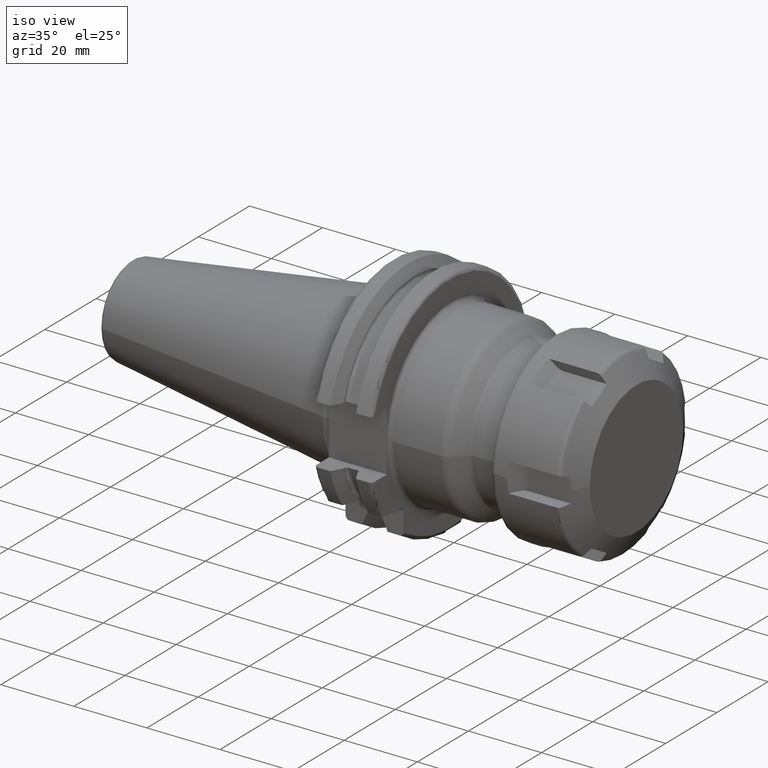
[diagram: clean part render]
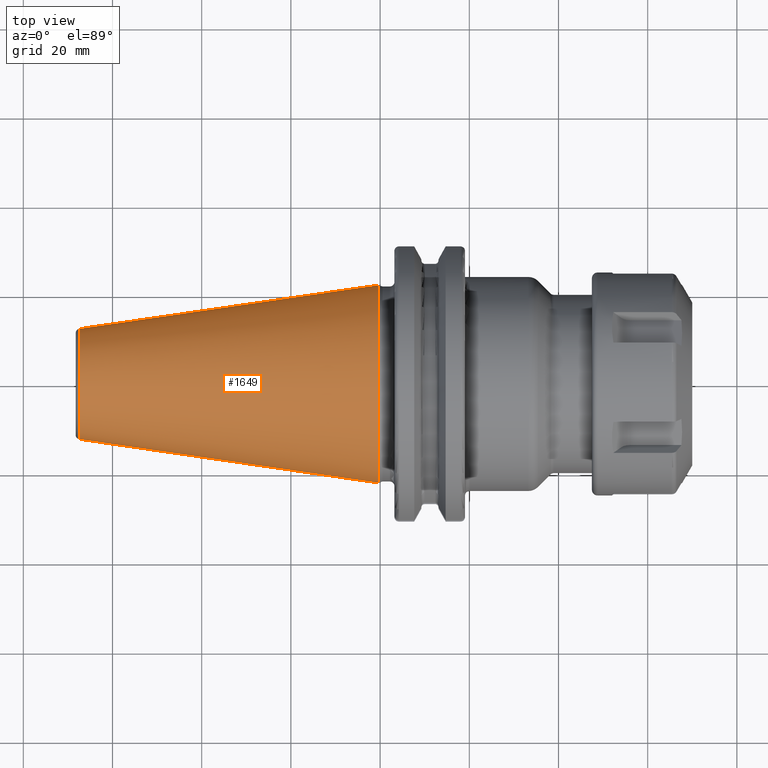
[diagram: tour spotlight — one face highlighted and labeled with its STEP entity id]
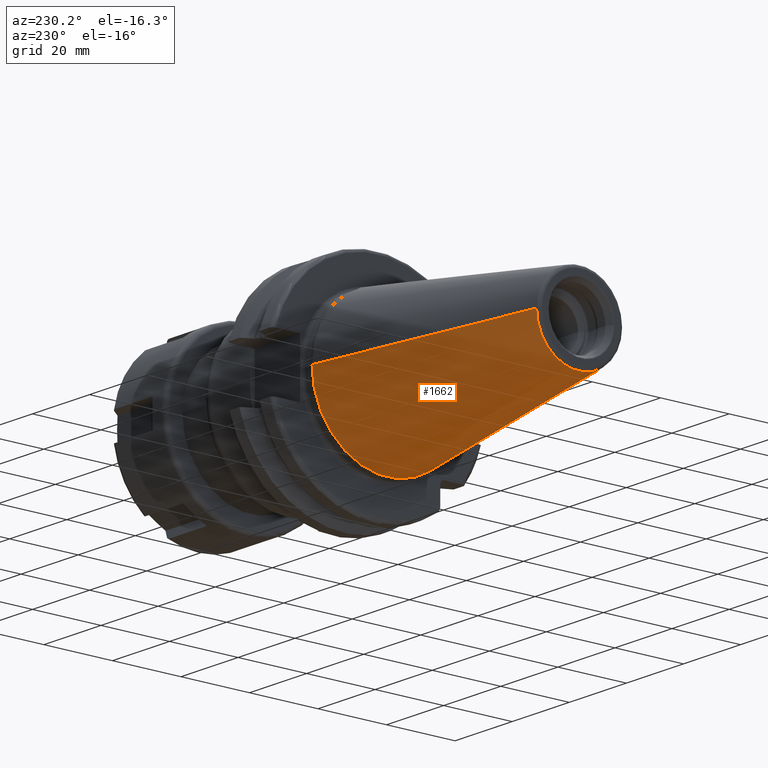
[diagram: tour spotlight — one face highlighted and labeled with its STEP entity id]
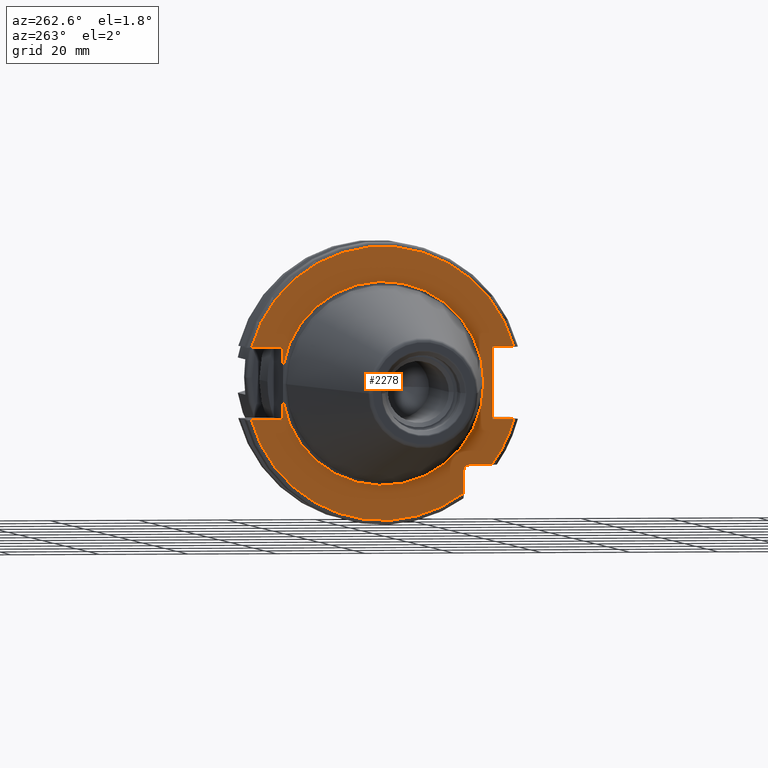
[diagram: tour spotlight — one face highlighted and labeled with its STEP entity id]
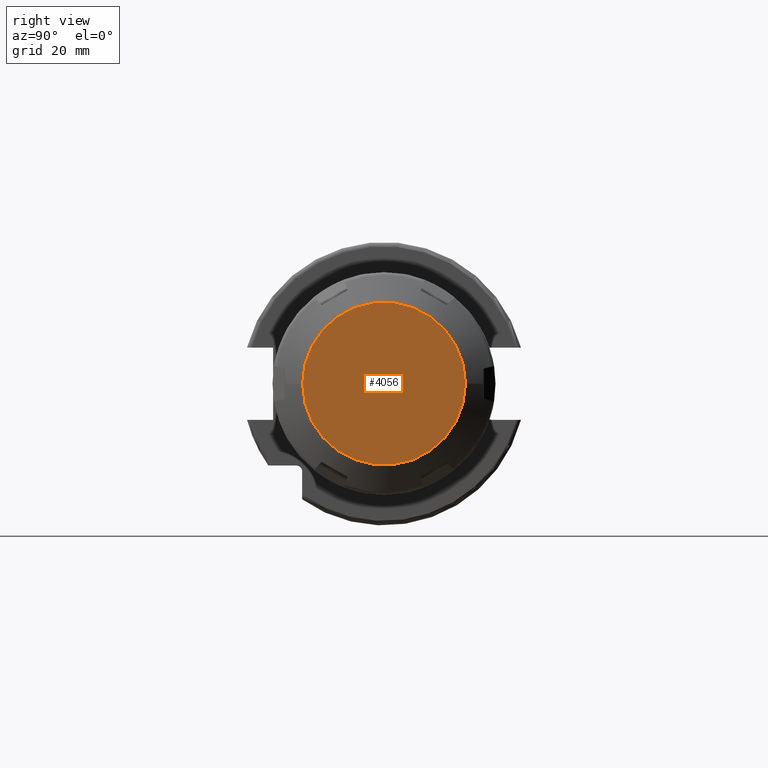
[diagram: tour spotlight — one face highlighted and labeled with its STEP entity id]
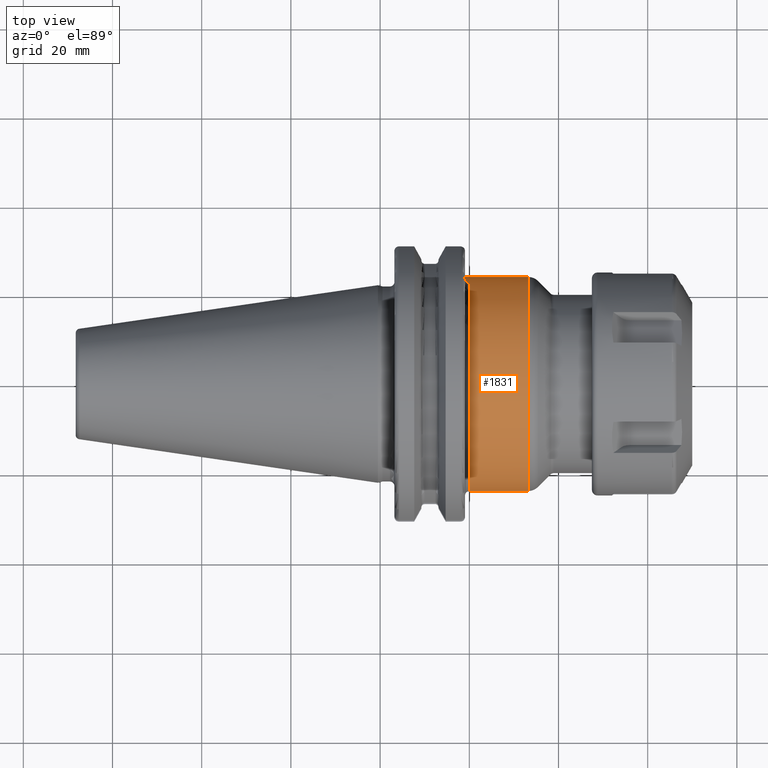
[diagram: tour spotlight — one face highlighted and labeled with its STEP entity id]
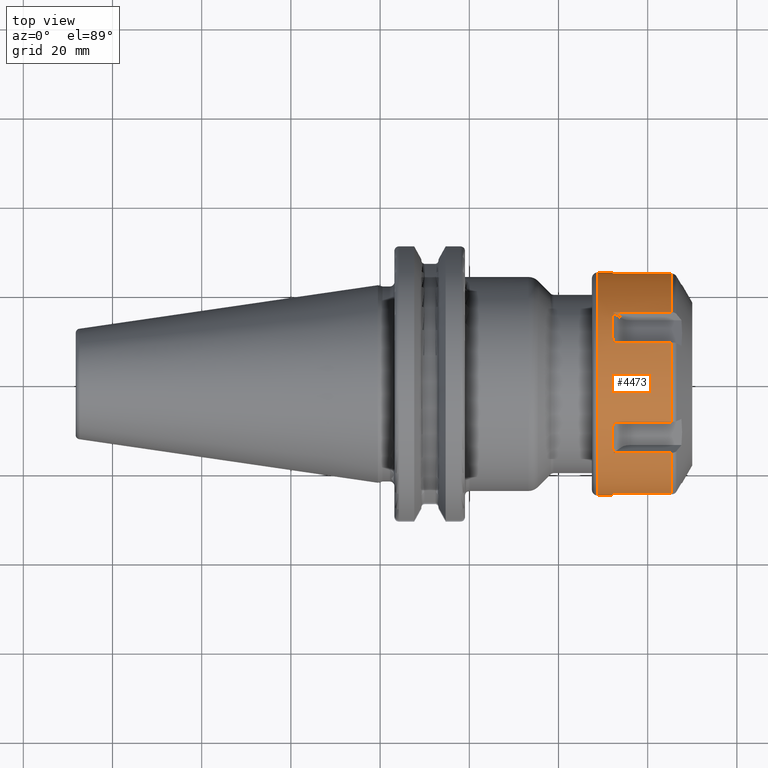
[diagram: tour spotlight — one face highlighted and labeled with its STEP entity id]
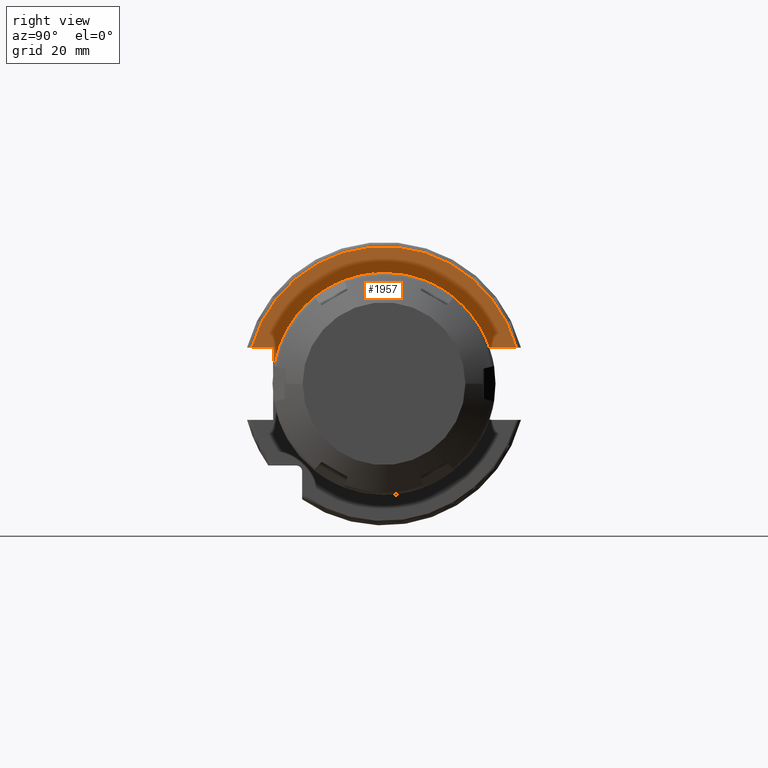
[diagram: tour spotlight — one face highlighted and labeled with its STEP entity id]
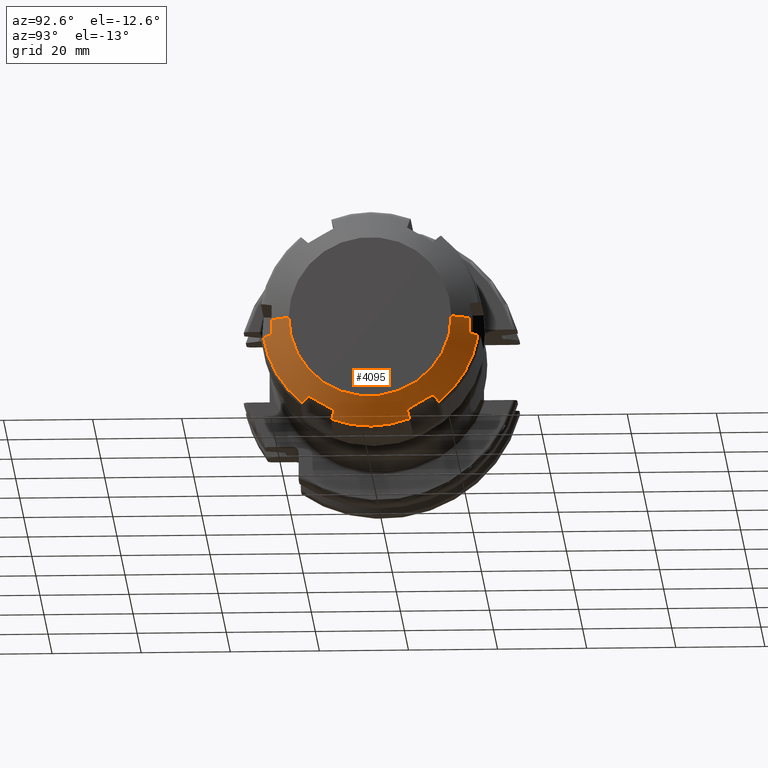
[diagram: tour spotlight — one face highlighted and labeled with its STEP entity id]
A machine part: a face-by-face anatomy tour. The part has 144 B-rep faces; the first image is the clean iso view, then the 8 largest visible faces are spotlighted one at a time (largest first), each with its STEP entity span.

Face 1 — top view, entity #1649. In plain terms, the highlighted conical surface has half-angle 8.298 deg.
Definition (entity closure, byte-faithful):
#37=CARTESIAN_POINT('',(-6.743710273571E1,0.E0,0.E0));
#38=DIRECTION('',(1.E0,0.E0,0.E0));
#39=DIRECTION('',(0.E0,1.E0,0.E0));
#40=AXIS2_PLACEMENT_3D('',#37,#38,#39);
#42=CARTESIAN_POINT('',(-4.896823332305E-1,0.E0,0.E0));
#43=DIRECTION('',(1.E0,0.E0,0.E0));
#44=DIRECTION('',(0.E0,1.E0,0.E0));
#45=AXIS2_PLACEMENT_3D('',#42,#43,#44);
#47=DIRECTION('',(-9.895312636440E-1,-1.443186691705E-1,0.E0));
#48=VECTOR('',#47,6.765568998391E1);
#49=CARTESIAN_POINT('',(-4.896823332305E-1,2.215358204157E1,0.E0));
#50=LINE('',#49,#48);
#51=DIRECTION('',(-9.895312636440E-1,1.443186691705E-1,0.E0));
#52=VECTOR('',#51,6.765568998391E1);
#53=CARTESIAN_POINT('',(-4.896823332305E-1,-2.215358204157E1,0.E0));
#54=LINE('',#53,#52);
#1311=CARTESIAN_POINT('',(-6.743710273571E1,1.238960290128E1,0.E0));
#1313=VERTEX_POINT('',#1311);
#1315=CARTESIAN_POINT('',(-6.743710273571E1,-1.238960290128E1,0.E0));
#1317=VERTEX_POINT('',#1315);
#1379=CARTESIAN_POINT('',(-4.896823332305E-1,2.215358204157E1,0.E0));
#1380=VERTEX_POINT('',#1379);
#1381=CARTESIAN_POINT('',(-4.896823332305E-1,-2.215358204157E1,0.E0));
#1382=VERTEX_POINT('',#1381);
#1635=CARTESIAN_POINT('',(-3.396339253447E1,0.E0,0.E0));
#1636=DIRECTION('',(1.E0,0.E0,0.E0));
#1637=DIRECTION('',(0.E0,-1.E0,0.E0));
#1638=AXIS2_PLACEMENT_3D('',#1635,#1636,#1637);
#1639=CONICAL_SURFACE('',#1638,1.727159247143E1,8.297826828206E0);
#1641=ORIENTED_EDGE('',*,*,#1640,.F.);
#1643=ORIENTED_EDGE('',*,*,#1642,.T.);
#1645=ORIENTED_EDGE('',*,*,#1644,.T.);
#1646=ORIENTED_EDGE('',*,*,#1628,.F.);
#1647=EDGE_LOOP('',(#1641,#1643,#1645,#1646));
#1648=FACE_OUTER_BOUND('',#1647,.F.);
#1649=ADVANCED_FACE('',(#1648),#1639,.T.);
#41=CIRCLE('',#40,1.238960290128E1);
#46=CIRCLE('',#45,2.215358204157E1);
#1628=EDGE_CURVE('',#1313,#1317,#41,.T.);
#1640=EDGE_CURVE('',#1380,#1313,#50,.T.);
#1642=EDGE_CURVE('',#1380,#1382,#46,.T.);
#1644=EDGE_CURVE('',#1382,#1317,#54,.T.);

Face 2 — auxiliary view, entity #1662. In plain terms, the highlighted conical surface has half-angle 8.298 deg.
Definition (entity closure, byte-faithful):
#32=CARTESIAN_POINT('',(-6.743710273571E1,0.E0,0.E0));
#33=DIRECTION('',(-1.E0,0.E0,0.E0));
#34=DIRECTION('',(0.E0,1.E0,0.E0));
#35=AXIS2_PLACEMENT_3D('',#32,#33,#34);
#47=DIRECTION('',(-9.895312636440E-1,-1.443186691705E-1,0.E0));
#48=VECTOR('',#47,6.765568998391E1);
#49=CARTESIAN_POINT('',(-4.896823332305E-1,2.215358204157E1,0.E0));
#50=LINE('',#49,#48);
#51=DIRECTION('',(-9.895312636440E-1,1.443186691705E-1,0.E0));
#52=VECTOR('',#51,6.765568998391E1);
#53=CARTESIAN_POINT('',(-4.896823332305E-1,-2.215358204157E1,0.E0));
#54=LINE('',#53,#52);
#55=CARTESIAN_POINT('',(-4.896823332305E-1,0.E0,0.E0));
#56=DIRECTION('',(-1.E0,0.E0,0.E0));
#57=DIRECTION('',(0.E0,1.E0,0.E0));
#58=AXIS2_PLACEMENT_3D('',#55,#56,#57);
#1311=CARTESIAN_POINT('',(-6.743710273571E1,1.238960290128E1,0.E0));
#1313=VERTEX_POINT('',#1311);
#1315=CARTESIAN_POINT('',(-6.743710273571E1,-1.238960290128E1,0.E0));
#1317=VERTEX_POINT('',#1315);
#1379=CARTESIAN_POINT('',(-4.896823332305E-1,2.215358204157E1,0.E0));
#1380=VERTEX_POINT('',#1379);
#1381=CARTESIAN_POINT('',(-4.896823332305E-1,-2.215358204157E1,0.E0));
#1382=VERTEX_POINT('',#1381);
#1650=CARTESIAN_POINT('',(-3.396339253447E1,0.E0,0.E0));
#1651=DIRECTION('',(1.E0,0.E0,0.E0));
#1652=DIRECTION('',(0.E0,-1.E0,0.E0));
#1653=AXIS2_PLACEMENT_3D('',#1650,#1651,#1652);
#1654=CONICAL_SURFACE('',#1653,1.727159247143E1,8.297826828206E0);
#1655=ORIENTED_EDGE('',*,*,#1640,.T.);
#1656=ORIENTED_EDGE('',*,*,#1617,.T.);
#1657=ORIENTED_EDGE('',*,*,#1644,.F.);
#1659=ORIENTED_EDGE('',*,*,#1658,.F.);
#1660=EDGE_LOOP('',(#1655,#1656,#1657,#1659));
#1661=FACE_OUTER_BOUND('',#1660,.F.);
#1662=ADVANCED_FACE('',(#1661),#1654,.T.);
#36=CIRCLE('',#35,1.238960290128E1);
#59=CIRCLE('',#58,2.215358204157E1);
#1617=EDGE_CURVE('',#1313,#1317,#36,.T.);
#1640=EDGE_CURVE('',#1380,#1313,#50,.T.);
#1644=EDGE_CURVE('',#1382,#1317,#54,.T.);
#1658=EDGE_CURVE('',#1380,#1382,#59,.T.);

Face 3 — auxiliary view, entity #2278. In plain terms, the highlighted planar face has unit normal (1, 0, 0).
Definition (entity closure, byte-faithful):
#117=CARTESIAN_POINT('',(3.2E0,0.E0,0.E0));
#118=DIRECTION('',(-1.E0,0.E0,0.E0));
#119=DIRECTION('',(0.E0,9.857923497268E-1,-1.679685780739E-1));
#120=AXIS2_PLACEMENT_3D('',#117,#118,#119);
#511=DIRECTION('',(0.E0,-1.E0,0.E0));
#512=VECTOR('',#511,4.990259339464E0);
#513=CARTESIAN_POINT('',(3.2E0,-1.97E1,-1.835E1));
#514=LINE('',#513,#512);
#515=DIRECTION('',(0.E0,0.E0,1.E0));
#516=VECTOR('',#515,4.990259339464E0);
#517=CARTESIAN_POINT('',(3.2E0,-1.835E1,-2.469025933946E1));
#518=LINE('',#517,#516);
#519=CARTESIAN_POINT('',(3.2E0,0.E0,0.E0));
#520=DIRECTION('',(-1.E0,0.E0,0.E0));
#521=DIRECTION('',(0.E0,9.647119303464E-1,-2.633075985372E-1));
#522=AXIS2_PLACEMENT_3D('',#519,#520,#521);
#524=DIRECTION('',(0.E0,-1.E0,0.E0));
#525=VECTOR('',#524,7.126950757280E0);
#526=CARTESIAN_POINT('',(3.2E0,2.967695075728E1,-8.1E0));
#527=LINE('',#526,#525);
#528=DIRECTION('',(0.E0,0.E0,-1.E0));
#529=VECTOR('',#528,4.257718776560E0);
#530=CARTESIAN_POINT('',(3.2E0,2.255E1,-3.842281223440E0));
#531=LINE('',#530,#529);
#532=DIRECTION('',(0.E0,0.E0,-1.E0));
#533=VECTOR('',#532,4.257718776560E0);
#534=CARTESIAN_POINT('',(3.2E0,2.255E1,8.1E0));
#535=LINE('',#534,#533);
#536=DIRECTION('',(0.E0,-1.E0,0.E0));
#537=VECTOR('',#536,7.126950757280E0);
#538=CARTESIAN_POINT('',(3.2E0,2.967695075728E1,8.1E0));
#539=LINE('',#538,#537);
#540=CARTESIAN_POINT('',(3.2E0,0.E0,0.E0));
#541=DIRECTION('',(1.E0,0.E0,0.E0));
#542=DIRECTION('',(0.E0,9.647119303464E-1,2.633075985372E-1));
#543=AXIS2_PLACEMENT_3D('',#540,#541,#542);
#545=DIRECTION('',(0.E0,1.E0,0.E0));
#546=VECTOR('',#545,4.826950757280E0);
#547=CARTESIAN_POINT('',(3.2E0,-2.967695075728E1,8.1E0));
#548=LINE('',#547,#546);
#549=DIRECTION('',(0.E0,0.E0,1.E0));
#550=VECTOR('',#549,1.62E1);
#551=CARTESIAN_POINT('',(3.2E0,-2.485E1,-8.1E0));
#552=LINE('',#551,#550);
#553=DIRECTION('',(0.E0,1.E0,0.E0));
#554=VECTOR('',#553,4.826950757280E0);
#555=CARTESIAN_POINT('',(3.2E0,-2.967695075728E1,-8.1E0));
#556=LINE('',#555,#554);
#557=CARTESIAN_POINT('',(3.2E0,0.E0,0.E0));
#558=DIRECTION('',(-1.E0,0.E0,0.E0));
#559=DIRECTION('',(0.E0,-8.026089992512E-1,-5.965054855750E-1));
#560=AXIS2_PLACEMENT_3D('',#557,#558,#559);
#571=CARTESIAN_POINT('',(3.2E0,-1.97E1,-1.97E1));
#572=DIRECTION('',(1.E0,0.E0,0.E0));
#573=DIRECTION('',(0.E0,1.E0,0.E0));
#574=AXIS2_PLACEMENT_3D('',#571,#572,#573);
#961=CARTESIAN_POINT('',(3.2E0,0.E0,0.E0));
#962=DIRECTION('',(1.E0,0.E0,0.E0));
#963=DIRECTION('',(0.E0,9.857923497268E-1,1.679685780739E-1));
#964=AXIS2_PLACEMENT_3D('',#961,#962,#963);
#1323=CARTESIAN_POINT('',(3.2E0,-2.2875E1,0.E0));
#1325=VERTEX_POINT('',#1323);
#1465=CARTESIAN_POINT('',(3.2E0,2.967695075728E1,8.1E0));
#1466=CARTESIAN_POINT('',(3.2E0,2.255E1,8.1E0));
#1467=VERTEX_POINT('',#1465);
#1468=VERTEX_POINT('',#1466);
#1469=CARTESIAN_POINT('',(3.2E0,2.255E1,3.842281223440E0));
#1470=VERTEX_POINT('',#1469);
#1471=CARTESIAN_POINT('',(3.2E0,2.255E1,-3.842281223440E0));
#1472=CARTESIAN_POINT('',(3.2E0,2.255E1,-8.1E0));
#1473=VERTEX_POINT('',#1471);
#1474=VERTEX_POINT('',#1472);
#1475=CARTESIAN_POINT('',(3.2E0,2.967695075728E1,-8.1E0));
#1476=VERTEX_POINT('',#1475);
#1477=CARTESIAN_POINT('',(3.2E0,-2.967695075728E1,-8.1E0));
#1478=CARTESIAN_POINT('',(3.2E0,-2.485E1,-8.1E0));
#1479=VERTEX_POINT('',#1477);
#1480=VERTEX_POINT('',#1478);
#1481=CARTESIAN_POINT('',(3.2E0,-2.485E1,8.1E0));
#1482=VERTEX_POINT('',#1481);
#1483=CARTESIAN_POINT('',(3.2E0,-2.967695075728E1,8.1E0));
#1484=VERTEX_POINT('',#1483);
#1510=CARTESIAN_POINT('',(3.2E0,-1.835E1,-2.469025933946E1));
#1511=VERTEX_POINT('',#1510);
#1518=CARTESIAN_POINT('',(3.2E0,-1.97E1,-1.835E1));
#1519=CARTESIAN_POINT('',(3.2E0,-2.469025933946E1,-1.835E1));
#1520=VERTEX_POINT('',#1518);
#1521=VERTEX_POINT('',#1519);
#1522=CARTESIAN_POINT('',(3.2E0,-1.835E1,-1.97E1));
#1523=VERTEX_POINT('',#1522);
#2249=CARTESIAN_POINT('',(3.2E0,0.E0,0.E0));
#2250=DIRECTION('',(1.E0,0.E0,0.E0));
#2251=DIRECTION('',(0.E0,-1.E0,0.E0));
#2252=AXIS2_PLACEMENT_3D('',#2249,#2250,#2251);
#2253=PLANE('',#2252);
#2255=ORIENTED_EDGE('',*,*,#2254,.F.);
#2257=ORIENTED_EDGE('',*,*,#2256,.F.);
#2259=ORIENTED_EDGE('',*,*,#2258,.F.);
#2261=ORIENTED_EDGE('',*,*,#2260,.F.);
#2262=ORIENTED_EDGE('',*,*,#1889,.T.);
#2263=ORIENTED_EDGE('',*,*,#1750,.F.);
#2264=ORIENTED_EDGE('',*,*,#1731,.T.);
#2266=ORIENTED_EDGE('',*,*,#2265,.F.);
#2267=ORIENTED_EDGE('',*,*,#1745,.F.);
#2268=ORIENTED_EDGE('',*,*,#1808,.F.);
#2270=ORIENTED_EDGE('',*,*,#2269,.T.);
#2271=ORIENTED_EDGE('',*,*,#2228,.T.);
#2272=ORIENTED_EDGE('',*,*,#1984,.F.);
#2273=ORIENTED_EDGE('',*,*,#2004,.F.);
#2275=ORIENTED_EDGE('',*,*,#2274,.F.);
#2276=EDGE_LOOP('',(#2255,#2257,#2259,#2261,#2262,#2263,#2264,#2266,#2267,#2268,
#2270,#2271,#2272,#2273,#2275));
#2277=FACE_OUTER_BOUND('',#2276,.F.);
#2278=ADVANCED_FACE('',(#2277),#2253,.F.);
#121=CIRCLE('',#120,2.2875E1);
#523=CIRCLE('',#522,3.07625E1);
#544=CIRCLE('',#543,3.07625E1);
#561=CIRCLE('',#560,3.07625E1);
#575=CIRCLE('',#574,1.35E0);
#965=CIRCLE('',#964,2.2875E1);
#1731=EDGE_CURVE('',#1473,#1325,#121,.T.);
#1745=EDGE_CURVE('',#1468,#1470,#535,.T.);
#1750=EDGE_CURVE('',#1473,#1474,#531,.T.);
#1808=EDGE_CURVE('',#1467,#1468,#539,.T.);
#1889=EDGE_CURVE('',#1476,#1474,#527,.T.);
#1984=EDGE_CURVE('',#1480,#1482,#552,.T.);
#2004=EDGE_CURVE('',#1479,#1480,#556,.T.);
#2228=EDGE_CURVE('',#1484,#1482,#548,.T.);
#2254=EDGE_CURVE('',#1520,#1521,#514,.T.);
#2256=EDGE_CURVE('',#1523,#1520,#575,.T.);
#2258=EDGE_CURVE('',#1511,#1523,#518,.T.);
#2260=EDGE_CURVE('',#1476,#1511,#523,.T.);
#2265=EDGE_CURVE('',#1470,#1325,#965,.T.);
#2269=EDGE_CURVE('',#1467,#1484,#544,.T.);
#2274=EDGE_CURVE('',#1521,#1479,#561,.T.);

Face 4 — right view, entity #4056. In plain terms, the highlighted planar face has unit normal (1, 0, 0).
Definition (entity closure, byte-faithful):
#3306=CARTESIAN_POINT('',(2.25E1,0.E0,0.E0));
#3307=DIRECTION('',(-1.E0,0.E0,0.E0));
#3308=DIRECTION('',(0.E0,1.E0,0.E0));
#3309=AXIS2_PLACEMENT_3D('',#3306,#3307,#3308);
#3674=CARTESIAN_POINT('',(2.25E1,0.E0,0.E0));
#3675=DIRECTION('',(1.E0,0.E0,0.E0));
#3676=DIRECTION('',(0.E0,1.E0,0.E0));
#3677=AXIS2_PLACEMENT_3D('',#3674,#3675,#3676);
#3937=CARTESIAN_POINT('',(2.25E1,1.825E1,0.E0));
#3938=CARTESIAN_POINT('',(2.25E1,-1.825E1,0.E0));
#3939=VERTEX_POINT('',#3937);
#3940=VERTEX_POINT('',#3938);
#4045=CARTESIAN_POINT('',(2.25E1,0.E0,0.E0));
#4046=DIRECTION('',(1.E0,0.E0,0.E0));
#4047=DIRECTION('',(0.E0,-1.E0,0.E0));
#4048=AXIS2_PLACEMENT_3D('',#4045,#4046,#4047);
#4049=PLANE('',#4048);
#4051=ORIENTED_EDGE('',*,*,#4050,.T.);
#4053=ORIENTED_EDGE('',*,*,#4052,.F.);
#4054=EDGE_LOOP('',(#4051,#4053));
#4055=FACE_OUTER_BOUND('',#4054,.F.);
#4056=ADVANCED_FACE('',(#4055),#4049,.T.);
#3310=CIRCLE('',#3309,1.825E1);
#3678=CIRCLE('',#3677,1.825E1);
#4050=EDGE_CURVE('',#3939,#3940,#3310,.T.);
#4052=EDGE_CURVE('',#3939,#3940,#3678,.T.);

Face 5 — top view, entity #1831. In plain terms, the highlighted cylindrical surface (partial cylindrical patch) has radius 24 mm, axis along (1, 0, 0).
Definition (entity closure, byte-faithful):
#135=CARTESIAN_POINT('',(1.905E1,0.E0,0.E0));
#136=DIRECTION('',(1.E0,0.E0,0.E0));
#137=DIRECTION('',(0.E0,1.E0,0.E0));
#138=AXIS2_PLACEMENT_3D('',#135,#136,#137);
#144=CARTESIAN_POINT('',(3.325735931288E1,0.E0,0.E0));
#145=DIRECTION('',(-1.E0,0.E0,0.E0));
#146=DIRECTION('',(0.E0,-1.E0,0.E0));
#147=AXIS2_PLACEMENT_3D('',#144,#145,#146);
#149=CARTESIAN_POINT('',(2.005E1,0.E0,0.E0));
#150=DIRECTION('',(1.E0,0.E0,0.E0));
#151=DIRECTION('',(0.E0,9.413255281782E-1,3.375E-1));
#152=AXIS2_PLACEMENT_3D('',#149,#150,#151);
#154=DIRECTION('',(-1.E0,0.E0,0.E0));
#155=VECTOR('',#154,1.E0);
#156=CARTESIAN_POINT('',(2.005E1,2.259181267628E1,8.1E0));
#157=LINE('',#156,#155);
#173=DIRECTION('',(-1.E0,0.E0,3.168897589390E-13));
#174=VECTOR('',#173,1.420735931288E1);
#175=CARTESIAN_POINT('',(3.325735931288E1,2.4E1,-4.500207232940E-12));
#176=LINE('',#175,#174);
#186=DIRECTION('',(-9.999999999095E-1,1.494816000092E-10,-1.345693270884E-5));
#187=VECTOR('',#186,1.320735931408E1);
#188=CARTESIAN_POINT('',(3.325735931288E1,-2.4E1,4.499440850481E-12));
#189=LINE('',#188,#187);
#1528=CARTESIAN_POINT('',(2.005E1,-2.4E1,0.E0));
#1530=VERTEX_POINT('',#1528);
#1536=CARTESIAN_POINT('',(2.005E1,2.259181267628E1,8.1E0));
#1537=VERTEX_POINT('',#1536);
#1538=CARTESIAN_POINT('',(3.325735931288E1,2.4E1,0.E0));
#1539=CARTESIAN_POINT('',(3.325735931288E1,-2.4E1,0.E0));
#1540=VERTEX_POINT('',#1538);
#1541=VERTEX_POINT('',#1539);
#1559=CARTESIAN_POINT('',(1.905E1,2.259181267628E1,8.1E0));
#1560=VERTEX_POINT('',#1559);
#1563=CARTESIAN_POINT('',(1.905E1,2.4E1,0.E0));
#1564=VERTEX_POINT('',#1563);
#1814=CARTESIAN_POINT('',(1.71525E1,0.E0,0.E0));
#1815=DIRECTION('',(1.E0,0.E0,0.E0));
#1816=DIRECTION('',(0.E0,-1.E0,0.E0));
#1817=AXIS2_PLACEMENT_3D('',#1814,#1815,#1816);
#1818=CYLINDRICAL_SURFACE('',#1817,2.4E1);
#1820=ORIENTED_EDGE('',*,*,#1819,.F.);
#1822=ORIENTED_EDGE('',*,*,#1821,.T.);
#1824=ORIENTED_EDGE('',*,*,#1823,.F.);
#1825=ORIENTED_EDGE('',*,*,#1780,.T.);
#1826=ORIENTED_EDGE('',*,*,#1769,.F.);
#1828=ORIENTED_EDGE('',*,*,#1827,.F.);
#1829=EDGE_LOOP('',(#1820,#1822,#1824,#1825,#1826,#1828));
#1830=FACE_OUTER_BOUND('',#1829,.F.);
#1831=ADVANCED_FACE('',(#1830),#1818,.T.);
#139=CIRCLE('',#138,2.4E1);
#148=CIRCLE('',#147,2.4E1);
#153=CIRCLE('',#152,2.4E1);
#1769=EDGE_CURVE('',#1564,#1560,#139,.T.);
#1780=EDGE_CURVE('',#1537,#1560,#157,.T.);
#1819=EDGE_CURVE('',#1541,#1540,#148,.T.);
#1821=EDGE_CURVE('',#1541,#1530,#189,.T.);
#1823=EDGE_CURVE('',#1537,#1530,#153,.T.);
#1827=EDGE_CURVE('',#1540,#1564,#176,.T.);

Face 6 — top view, entity #4473. In plain terms, the highlighted cylindrical surface (partial cylindrical patch) has radius 25 mm, axis along (1, 0, 0).
Definition (entity closure, byte-faithful):
#3386=DIRECTION('',(-9.999994740307E-1,1.025640486187E-3,1.577133168835E-12));
#3387=VECTOR('',#3386,3.250001709401E0);
#3388=CARTESIAN_POINT('',(4.5E0,2.499666666667E1,1.417951640115E-14));
#3389=LINE('',#3388,#3387);
#3395=DIRECTION('',(-9.999994740307E-1,-1.025640486184E-3,-1.578379367537E-12));
#3396=VECTOR('',#3395,3.250001709401E0);
#3397=CARTESIAN_POINT('',(4.5E0,-2.499666666667E1,-1.240051271650E-14));
#3398=LINE('',#3397,#3396);
#3441=CARTESIAN_POINT('',(1.788119784648E1,1.577876823125E1,1.939150517893E1));
#3461=CARTESIAN_POINT('',(1.788119784648E1,2.468292021820E1,3.969061539222E0));
#3463=CARTESIAN_POINT('',(1.788119784648E1,-8.904151986948E0,2.336056671815E1));
#3483=CARTESIAN_POINT('',(1.788119784648E1,8.904151986948E0,2.336056671815E1));
#3485=CARTESIAN_POINT('',(1.788119784648E1,-2.468292021820E1,3.969061539222E0));
#3505=CARTESIAN_POINT('',(1.788119784648E1,-1.577876823125E1,1.939150517893E1));
#3715=DIRECTION('',(1.E0,0.E0,0.E0));
#3716=VECTOR('',#3715,1.307411806468E1);
#3717=CARTESIAN_POINT('',(4.807079781803E0,-2.468292021820E1,3.969061539222E0));
#3718=LINE('',#3717,#3716);
#3719=CARTESIAN_POINT('',(4.807079781803E0,-2.468292021820E1,3.969061539222E0));
#3720=CARTESIAN_POINT('',(4.729701493378E0,-2.476029850662E1,3.487859093522E0));
#3721=CARTESIAN_POINT('',(4.609219197891E0,-2.488166969100E1,2.550817383639E0));
#3722=CARTESIAN_POINT('',(4.504536623461E0,-2.498235226543E1,1.228026509027E0));
#3723=CARTESIAN_POINT('',(4.5E0,-2.499666666667E1,4.003888699202E-1));
#3724=CARTESIAN_POINT('',(4.5E0,-2.499666666667E1,-1.240051271650E-14));
#3726=CARTESIAN_POINT('',(1.25E0,0.E0,0.E0));
#3727=DIRECTION('',(-1.E0,0.E0,0.E0));
#3728=DIRECTION('',(0.E0,-1.E0,0.E0));
#3729=AXIS2_PLACEMENT_3D('',#3726,#3727,#3728);
#3731=CARTESIAN_POINT('',(4.5E0,2.499666666667E1,1.417951640115E-14));
#3732=CARTESIAN_POINT('',(4.5E0,2.499666666667E1,1.451714455632E-1));
#3733=CARTESIAN_POINT('',(4.487872521708E0,2.499903346707E1,4.463428212677E-1));
#3734=CARTESIAN_POINT('',(4.506996588005E0,2.498383245127E1,9.338081408940E-1));
#3735=CARTESIAN_POINT('',(4.530046438305E0,2.495973141581E1,1.454059244478E0));
#3736=CARTESIAN_POINT('',(4.569007848129E0,2.492105169613E1,2.013026454191E0));
#3737=CARTESIAN_POINT('',(4.624405857984E0,2.486557811087E1,2.614252934544E0));
#3738=CARTESIAN_POINT('',(4.700654693787E0,2.478934988654E1,3.262138709532E0));
#3739=CARTESIAN_POINT('',(4.768334245703E0,2.472166575430E1,3.728109624791E0));
#3740=CARTESIAN_POINT('',(4.807079781803E0,2.468292021820E1,3.969061539222E0));
#3742=DIRECTION('',(1.E0,0.E0,0.E0));
#3743=VECTOR('',#3742,1.307411806468E1);
#3744=CARTESIAN_POINT('',(4.807079781803E0,2.468292021820E1,3.969061539222E0));
#3745=LINE('',#3744,#3743);
#3746=CARTESIAN_POINT('',(1.788119784648E1,0.E0,0.E0));
#3747=DIRECTION('',(-1.E0,0.E0,0.E0));
#3748=DIRECTION('',(0.E0,6.311507292499E-1,7.756602071573E-1));
#3749=AXIS2_PLACEMENT_3D('',#3746,#3747,#3748);
#3751=DIRECTION('',(1.E0,0.E0,0.E0));
#3752=VECTOR('',#3751,1.307411806468E1);
#3753=CARTESIAN_POINT('',(4.807079781803E0,1.577876823125E1,1.939150517893E1));
#3754=LINE('',#3753,#3752);
#3755=CARTESIAN_POINT('',(4.807079781803E0,1.577876823125E1,1.939150517893E1));
#3756=CARTESIAN_POINT('',(4.381591242552E0,1.369997375277E1,2.108300957602E1));
#3757=CARTESIAN_POINT('',(4.381591242552E0,1.140843500467E1,2.240603008909E1));
#3758=CARTESIAN_POINT('',(4.807079781803E0,8.904151986948E0,2.336056671815E1));
#3760=DIRECTION('',(1.E0,0.E0,0.E0));
#3761=VECTOR('',#3760,1.307411806468E1);
#3762=CARTESIAN_POINT('',(4.807079781803E0,8.904151986948E0,2.336056671815E1));
#3763=LINE('',#3762,#3761);
#3764=CARTESIAN_POINT('',(1.788119784648E1,0.E0,0.E0));
#3765=DIRECTION('',(-1.E0,0.E0,0.E0));
#3766=DIRECTION('',(0.E0,-3.561660794779E-1,9.344226687262E-1));
#3767=AXIS2_PLACEMENT_3D('',#3764,#3765,#3766);
#3769=DIRECTION('',(1.E0,0.E0,0.E0));
#3770=VECTOR('',#3769,1.307411806468E1);
#3771=CARTESIAN_POINT('',(4.807079781803E0,-8.904151986948E0,2.336056671815E1));
#3772=LINE('',#3771,#3770);
#3773=CARTESIAN_POINT('',(4.807079781803E0,-8.904151986948E0,2.336056671815E1));
#3774=CARTESIAN_POINT('',(4.381591242552E0,-1.140843500467E1,2.240603008909E1));
#3775=CARTESIAN_POINT('',(4.381591242552E0,-1.369997375277E1,2.108300957602E1));
#3776=CARTESIAN_POINT('',(4.807079781803E0,-1.577876823125E1,1.939150517893E1));
#3778=DIRECTION('',(1.E0,0.E0,0.E0));
#3779=VECTOR('',#3778,1.307411806468E1);
#3780=CARTESIAN_POINT('',(4.807079781803E0,-1.577876823125E1,1.939150517893E1));
#3781=LINE('',#3780,#3779);
#3782=CARTESIAN_POINT('',(1.788119784648E1,0.E0,0.E0));
#3783=DIRECTION('',(-1.E0,0.E0,0.E0));
#3784=DIRECTION('',(0.E0,-9.873168087279E-1,1.587624615689E-1));
#3785=AXIS2_PLACEMENT_3D('',#3782,#3783,#3784);
#3945=CARTESIAN_POINT('',(1.25E0,2.5E1,0.E0));
#3946=CARTESIAN_POINT('',(1.25E0,-2.5E1,0.E0));
#3947=VERTEX_POINT('',#3945);
#3948=VERTEX_POINT('',#3946);
#3954=VERTEX_POINT('',#3461);
#3956=CARTESIAN_POINT('',(4.807079781803E0,2.468292021820E1,3.969061539222E0));
#3957=VERTEX_POINT('',#3956);
#3969=VERTEX_POINT('',#3483);
#3970=VERTEX_POINT('',#3441);
#3971=CARTESIAN_POINT('',(4.807079781803E0,8.904151986948E0,2.336056671815E1));
#3972=VERTEX_POINT('',#3971);
#3973=CARTESIAN_POINT('',(4.807079781803E0,1.577876823125E1,1.939150517893E1));
#3974=VERTEX_POINT('',#3973);
#3984=VERTEX_POINT('',#3505);
#3985=VERTEX_POINT('',#3463);
#3986=CARTESIAN_POINT('',(4.807079781803E0,-1.577876823125E1,1.939150517893E1));
#3987=VERTEX_POINT('',#3986);
#3988=CARTESIAN_POINT('',(4.807079781803E0,-8.904151986948E0,2.336056671815E1));
#3989=VERTEX_POINT('',#3988);
#4001=VERTEX_POINT('',#3485);
#4002=CARTESIAN_POINT('',(4.807079781803E0,-2.468292021820E1,3.969061539222E0));
#4003=VERTEX_POINT('',#4002);
#4041=CARTESIAN_POINT('',(4.5E0,-2.499666666667E1,-1.240051271650E-14));
#4042=VERTEX_POINT('',#4041);
#4043=CARTESIAN_POINT('',(4.5E0,2.499666666667E1,1.417951640115E-14));
#4044=VERTEX_POINT('',#4043);
#4442=CARTESIAN_POINT('',(-1.125E0,0.E0,0.E0));
#4443=DIRECTION('',(1.E0,0.E0,0.E0));
#4444=DIRECTION('',(0.E0,-1.E0,0.E0));
#4445=AXIS2_PLACEMENT_3D('',#4442,#4443,#4444);
#4446=CYLINDRICAL_SURFACE('',#4445,2.5E1);
#4447=ORIENTED_EDGE('',*,*,#4405,.F.);
#4448=ORIENTED_EDGE('',*,*,#4422,.T.);
#4449=ORIENTED_EDGE('',*,*,#4178,.T.);
#4451=ORIENTED_EDGE('',*,*,#4450,.T.);
#4452=ORIENTED_EDGE('',*,*,#4174,.F.);
#4454=ORIENTED_EDGE('',*,*,#4453,.T.);
#4456=ORIENTED_EDGE('',*,*,#4455,.T.);
#4457=ORIENTED_EDGE('',*,*,#4205,.F.);
#4458=ORIENTED_EDGE('',*,*,#4295,.F.);
#4460=ORIENTED_EDGE('',*,*,#4459,.T.);
#4462=ORIENTED_EDGE('',*,*,#4461,.T.);
#4463=ORIENTED_EDGE('',*,*,#4221,.F.);
#4465=ORIENTED_EDGE('',*,*,#4464,.F.);
#4467=ORIENTED_EDGE('',*,*,#4466,.T.);
#4469=ORIENTED_EDGE('',*,*,#4468,.T.);
#4470=ORIENTED_EDGE('',*,*,#4237,.F.);
#4471=EDGE_LOOP('',(#4447,#4448,#4449,#4451,#4452,#4454,#4456,#4457,#4458,#4460,
#4462,#4463,#4465,#4467,#4469,#4470));
#4472=FACE_OUTER_BOUND('',#4471,.F.);
#4473=ADVANCED_FACE('',(#4472),#4446,.T.);
#3725=B_SPLINE_CURVE_WITH_KNOTS('',3,(#3719,#3720,#3721,#3722,#3723,#3724),
.UNSPECIFIED.,.F.,.F.,(4,1,1,4),(0.E0,3.333333333333E-1,6.666666666667E-1,1.E0),
.UNSPECIFIED.);
#3730=CIRCLE('',#3729,2.5E1);
#3741=B_SPLINE_CURVE_WITH_KNOTS('',3,(#3731,#3732,#3733,#3734,#3735,#3736,#3737,
#3738,#3739,#3740),.UNSPECIFIED.,.F.,.F.,(4,1,1,1,1,1,1,4),(0.E0,
1.428571428571E-1,2.857142857143E-1,4.285714285714E-1,5.714285714286E-1,
7.142857142857E-1,8.571428571429E-1,1.E0),.UNSPECIFIED.);
#3750=CIRCLE('',#3749,2.5E1);
#3759=B_SPLINE_CURVE_WITH_KNOTS('',3,(#3755,#3756,#3757,#3758),.UNSPECIFIED.,
.F.,.F.,(4,4),(0.E0,1.E0),.UNSPECIFIED.);
#3768=CIRCLE('',#3767,2.5E1);
#3777=B_SPLINE_CURVE_WITH_KNOTS('',3,(#3773,#3774,#3775,#3776),.UNSPECIFIED.,
.F.,.F.,(4,4),(0.E0,1.E0),.UNSPECIFIED.);
#3786=CIRCLE('',#3785,2.5E1);
#4174=EDGE_CURVE('',#4044,#3947,#3389,.T.);
#4178=EDGE_CURVE('',#4042,#3948,#3398,.T.);
#4205=EDGE_CURVE('',#3970,#3954,#3750,.T.);
#4221=EDGE_CURVE('',#3985,#3969,#3768,.T.);
#4237=EDGE_CURVE('',#4001,#3984,#3786,.T.);
#4295=EDGE_CURVE('',#3974,#3970,#3754,.T.);
#4405=EDGE_CURVE('',#4003,#4001,#3718,.T.);
#4422=EDGE_CURVE('',#4003,#4042,#3725,.T.);
#4450=EDGE_CURVE('',#3948,#3947,#3730,.T.);
#4453=EDGE_CURVE('',#4044,#3957,#3741,.T.);
#4455=EDGE_CURVE('',#3957,#3954,#3745,.T.);
#4459=EDGE_CURVE('',#3974,#3972,#3759,.T.);
#4461=EDGE_CURVE('',#3972,#3969,#3763,.T.);
#4464=EDGE_CURVE('',#3989,#3985,#3772,.T.);
#4466=EDGE_CURVE('',#3989,#3987,#3777,.T.);
#4468=EDGE_CURVE('',#3987,#3984,#3781,.T.);

Face 7 — right view, entity #1957. In plain terms, the highlighted planar face has unit normal (1, 0, 0).
Definition (entity closure, byte-faithful):
#223=CARTESIAN_POINT('',(1.905E1,0.E0,0.E0));
#224=DIRECTION('',(1.E0,0.E0,0.E0));
#225=DIRECTION('',(0.E0,9.460570807303E-1,3.24E-1));
#226=AXIS2_PLACEMENT_3D('',#223,#224,#225);
#228=DIRECTION('',(0.E0,-1.643578596492E-6,9.999999999986E-1));
#229=VECTOR('',#228,5.368531677989E0);
#230=CARTESIAN_POINT('',(1.905E1,-2.484999117640E1,2.731468322018E0));
#231=LINE('',#230,#229);
#232=DIRECTION('',(0.E0,1.E0,0.E0));
#233=VECTOR('',#232,4.826950757280E0);
#234=CARTESIAN_POINT('',(1.905E1,-2.967695075728E1,8.1E0));
#235=LINE('',#234,#233);
#236=DIRECTION('',(0.E0,-1.E0,0.E0));
#237=VECTOR('',#236,6.025523739021E0);
#238=CARTESIAN_POINT('',(1.905E1,2.967695075728E1,8.1E0));
#239=LINE('',#238,#237);
#484=CARTESIAN_POINT('',(1.905E1,2.967695075728E1,8.1E0));
#495=CARTESIAN_POINT('',(1.905E1,0.E0,0.E0));
#496=DIRECTION('',(1.E0,0.E0,0.E0));
#497=DIRECTION('',(0.E0,9.647119303464E-1,2.633075985372E-1));
#498=AXIS2_PLACEMENT_3D('',#495,#496,#497);
#1453=CARTESIAN_POINT('',(1.905E1,-2.967695075728E1,8.1E0));
#1454=CARTESIAN_POINT('',(1.905E1,-2.485E1,8.1E0));
#1455=VERTEX_POINT('',#1453);
#1456=VERTEX_POINT('',#1454);
#1494=VERTEX_POINT('',#484);
#1532=CARTESIAN_POINT('',(1.905E1,2.365142701826E1,8.1E0));
#1533=CARTESIAN_POINT('',(1.905E1,-2.485101390847E1,2.725272045317E0));
#1534=VERTEX_POINT('',#1532);
#1535=VERTEX_POINT('',#1533);
#1941=CARTESIAN_POINT('',(1.905E1,0.E0,0.E0));
#1942=DIRECTION('',(1.E0,0.E0,0.E0));
#1943=DIRECTION('',(0.E0,-1.E0,0.E0));
#1944=AXIS2_PLACEMENT_3D('',#1941,#1942,#1943);
#1945=PLANE('',#1944);
#1947=ORIENTED_EDGE('',*,*,#1946,.T.);
#1949=ORIENTED_EDGE('',*,*,#1948,.T.);
#1951=ORIENTED_EDGE('',*,*,#1950,.F.);
#1953=ORIENTED_EDGE('',*,*,#1952,.F.);
#1954=ORIENTED_EDGE('',*,*,#1784,.T.);
#1955=EDGE_LOOP('',(#1947,#1949,#1951,#1953,#1954));
#1956=FACE_OUTER_BOUND('',#1955,.F.);
#1957=ADVANCED_FACE('',(#1956),#1945,.T.);
#227=CIRCLE('',#226,2.5E1);
#499=CIRCLE('',#498,3.07625E1);
#1784=EDGE_CURVE('',#1494,#1534,#239,.T.);
#1946=EDGE_CURVE('',#1534,#1535,#227,.T.);
#1948=EDGE_CURVE('',#1535,#1456,#231,.T.);
#1950=EDGE_CURVE('',#1455,#1456,#235,.T.);
#1952=EDGE_CURVE('',#1494,#1455,#499,.T.);

Face 8 — auxiliary view, entity #4095. In plain terms, the highlighted conical surface has half-angle 60 deg.
Definition (entity closure, byte-faithful):
#3241=CARTESIAN_POINT('',(2.007435737753E1,1.400118510268E1,-1.755076396401E1));
#3242=CARTESIAN_POINT('',(1.989202963548E1,1.422154361045E1,-1.777895187872E1));
#3243=CARTESIAN_POINT('',(1.952459463873E1,1.466553630405E1,-1.823871977204E1));
#3244=CARTESIAN_POINT('',(1.915160861205E1,1.511608354504E1,-1.870527509788E1));
#3245=CARTESIAN_POINT('',(1.896372960121E1,1.534299650585E1,-1.894025034738E1));
#3247=CARTESIAN_POINT('',(2.007435737753E1,8.198814897322E0,-2.090076396401E1));
#3248=CARTESIAN_POINT('',(2.013850261850E1,8.843656557694E0,-2.052846445781E1));
#3249=CARTESIAN_POINT('',(2.022485531472E1,1.013317723897E1,-1.978395934535E1));
#3250=CARTESIAN_POINT('',(2.022485360844E1,1.206686210227E1,-1.866754586900E1));
#3251=CARTESIAN_POINT('',(2.013850094754E1,1.335636024026E1,-1.792305377191E1));
#3252=CARTESIAN_POINT('',(2.007435737753E1,1.400118510268E1,-1.755076396401E1));
#3254=CARTESIAN_POINT('',(1.896372960121E1,8.731239701949E0,-2.275754991793E1));
#3255=CARTESIAN_POINT('',(1.915154885340E1,8.641230285410E0,-2.244364977861E1));
#3256=CARTESIAN_POINT('',(1.952447514954E1,8.462483784300E0,-2.182028664885E1));
#3257=CARTESIAN_POINT('',(1.989196990744E1,8.286280817645E0,-2.120579387789E1));
#3258=CARTESIAN_POINT('',(2.007435737753E1,8.198814897322E0,-2.090076396401E1));
#3260=CARTESIAN_POINT('',(1.896372960121E1,0.E0,0.E0));
#3261=DIRECTION('',(-1.E0,0.E0,0.E0));
#3262=DIRECTION('',(0.E0,3.582047057210E-1,-9.336430735561E-1));
#3263=AXIS2_PLACEMENT_3D('',#3260,#3261,#3262);
#3265=CARTESIAN_POINT('',(2.007435737753E1,-8.198814897322E0,
-2.090076396401E1));
#3266=CARTESIAN_POINT('',(1.989202963548E1,-8.286252174404E0,
-2.120569398704E1));
#3267=CARTESIAN_POINT('',(1.952459463873E1,-8.462426503065E0,
-2.182008688545E1));
#3268=CARTESIAN_POINT('',(1.915160861205E1,-8.641201647020E0,
-2.244354990467E1));
#3269=CARTESIAN_POINT('',(1.896372960121E1,-8.731239701949E0,
-2.275754991793E1));
#3271=CARTESIAN_POINT('',(2.007435737753E1,-1.400118510268E1,
-1.755076396401E1));
#3272=CARTESIAN_POINT('',(2.013850261850E1,-1.335634344231E1,
-1.792306347021E1));
#3273=CARTESIAN_POINT('',(2.022485531472E1,-1.206682276103E1,
-1.866756858268E1));
#3274=CARTESIAN_POINT('',(2.022485360844E1,-1.013313789773E1,
-1.978398205903E1));
#3275=CARTESIAN_POINT('',(2.013850094754E1,-8.843639759743E0,
-2.052847415612E1));
#3276=CARTESIAN_POINT('',(2.007435737753E1,-8.198814897322E0,
-2.090076396401E1));
#3278=CARTESIAN_POINT('',(1.896372960121E1,-1.534299650585E1,
-1.894025034738E1));
#3279=CARTESIAN_POINT('',(1.915154885340E1,-1.511615571921E1,
-1.870534983642E1));
#3280=CARTESIAN_POINT('',(1.952447514954E1,-1.466568066362E1,
-1.823886926074E1));
#3281=CARTESIAN_POINT('',(1.989196990744E1,-1.422161579685E1,
-1.777902662992E1));
#3282=CARTESIAN_POINT('',(2.007435737753E1,-1.400118510268E1,
-1.755076396401E1));
#3284=CARTESIAN_POINT('',(1.896372960121E1,0.E0,0.E0));
#3285=DIRECTION('',(-1.E0,0.E0,0.E0));
#3286=DIRECTION('',(0.E0,-6.294562669065E-1,-7.770359116876E-1));
#3287=AXIS2_PLACEMENT_3D('',#3284,#3285,#3286);
#3289=CARTESIAN_POINT('',(2.007435737753E1,-2.22E1,-3.35E0));
#3290=CARTESIAN_POINT('',(1.989202963548E1,-2.250779578486E1,
-3.426742108322E0));
#3291=CARTESIAN_POINT('',(1.952459463873E1,-2.312796280711E1,
-3.581367113410E0));
#3292=CARTESIAN_POINT('',(1.915160861205E1,-2.375728519206E1,
-3.738274806794E0));
#3293=CARTESIAN_POINT('',(1.896372960121E1,-2.407423620780E1,
-3.817299570546E0));
#3295=CARTESIAN_POINT('',(2.021946643670E1,-2.22E1,-4.505137681520E-14));
#3296=CARTESIAN_POINT('',(2.021946643670E1,-2.22E1,-3.723412104007E-1));
#3297=CARTESIAN_POINT('',(2.020864224929E1,-2.22E1,-1.116942255784E0));
#3298=CARTESIAN_POINT('',(2.016008769471E1,-2.22E1,-2.233495806650E0));
#3299=CARTESIAN_POINT('',(2.010641792581E1,-2.22E1,-2.977840628173E0));
#3300=CARTESIAN_POINT('',(2.007435737753E1,-2.22E1,-3.35E0));
#3302=DIRECTION('',(-5.E-1,-8.660254037844E-1,0.E0));
#3303=VECTOR('',#3302,4.561067126598E0);
#3304=CARTESIAN_POINT('',(2.25E1,-1.825E1,0.E0));
#3305=LINE('',#3304,#3303);
#3306=CARTESIAN_POINT('',(2.25E1,0.E0,0.E0));
#3307=DIRECTION('',(-1.E0,0.E0,0.E0));
#3308=DIRECTION('',(0.E0,1.E0,0.E0));
#3309=AXIS2_PLACEMENT_3D('',#3306,#3307,#3308);
#3311=DIRECTION('',(-5.E-1,8.660254037844E-1,0.E0));
#3312=VECTOR('',#3311,4.561067126598E0);
#3313=CARTESIAN_POINT('',(2.25E1,1.825E1,0.E0));
#3314=LINE('',#3313,#3312);
#3315=CARTESIAN_POINT('',(2.007435737753E1,2.22E1,-3.35E0));
#3316=CARTESIAN_POINT('',(2.010642291935E1,2.22E1,-2.977782663007E0));
#3317=CARTESIAN_POINT('',(2.016009585532E1,2.22E1,-2.233360618265E0));
#3318=CARTESIAN_POINT('',(2.020864465134E1,2.22E1,-1.116836975823E0));
#3319=CARTESIAN_POINT('',(2.021946643670E1,2.22E1,-3.722962341462E-1));
#3320=CARTESIAN_POINT('',(2.021946643670E1,2.22E1,0.E0));
#3322=CARTESIAN_POINT('',(1.896372960121E1,2.407423620780E1,-3.817299570546E0));
#3323=CARTESIAN_POINT('',(1.915154885340E1,2.375738600462E1,-3.738299942188E0));
#3324=CARTESIAN_POINT('',(1.952447514954E1,2.312816444792E1,-3.581417388109E0));
#3325=CARTESIAN_POINT('',(1.989196990744E1,2.250789661449E1,-3.426767247974E0));
#3326=CARTESIAN_POINT('',(2.007435737753E1,2.22E1,-3.35E0));
#3328=CARTESIAN_POINT('',(1.896372960121E1,0.E0,0.E0));
#3329=DIRECTION('',(-1.E0,0.E0,0.E0));
#3330=DIRECTION('',(0.E0,9.876609726275E-1,-1.566071618686E-1));
#3331=AXIS2_PLACEMENT_3D('',#3328,#3329,#3330);
#3600=CARTESIAN_POINT('',(2.021946643670E1,-2.22E1,-4.505137681520E-14));
#3667=CARTESIAN_POINT('',(2.021946643670E1,2.22E1,0.E0));
#3937=CARTESIAN_POINT('',(2.25E1,1.825E1,0.E0));
#3938=CARTESIAN_POINT('',(2.25E1,-1.825E1,0.E0));
#3939=VERTEX_POINT('',#3937);
#3940=VERTEX_POINT('',#3938);
#3951=VERTEX_POINT('',#3667);
#3952=VERTEX_POINT('',#3315);
#3953=VERTEX_POINT('',#3322);
#3996=VERTEX_POINT('',#3600);
#3998=VERTEX_POINT('',#3289);
#3999=VERTEX_POINT('',#3293);
#4011=VERTEX_POINT('',#3265);
#4012=VERTEX_POINT('',#3269);
#4013=VERTEX_POINT('',#3271);
#4014=VERTEX_POINT('',#3278);
#4026=VERTEX_POINT('',#3241);
#4027=VERTEX_POINT('',#3245);
#4028=VERTEX_POINT('',#3247);
#4029=VERTEX_POINT('',#3254);
#4057=CARTESIAN_POINT('',(2.073186480061E1,0.E0,0.E0));
#4058=DIRECTION('',(-1.E0,0.E0,0.E0));
#4059=DIRECTION('',(0.E0,1.E0,0.E0));
#4060=AXIS2_PLACEMENT_3D('',#4057,#4058,#4059);
#4061=CONICAL_SURFACE('',#4060,2.13125E1,6.E1);
#4063=ORIENTED_EDGE('',*,*,#4062,.F.);
#4065=ORIENTED_EDGE('',*,*,#4064,.F.);
#4067=ORIENTED_EDGE('',*,*,#4066,.F.);
#4069=ORIENTED_EDGE('',*,*,#4068,.T.);
#4071=ORIENTED_EDGE('',*,*,#4070,.F.);
#4073=ORIENTED_EDGE('',*,*,#4072,.F.);
#4075=ORIENTED_EDGE('',*,*,#4074,.F.);
#4077=ORIENTED_EDGE('',*,*,#4076,.T.);
#4079=ORIENTED_EDGE('',*,*,#4078,.F.);
#4081=ORIENTED_EDGE('',*,*,#4080,.F.);
#4083=ORIENTED_EDGE('',*,*,#4082,.F.);
#4084=ORIENTED_EDGE('',*,*,#4050,.F.);
#4086=ORIENTED_EDGE('',*,*,#4085,.T.);
#4088=ORIENTED_EDGE('',*,*,#4087,.F.);
#4090=ORIENTED_EDGE('',*,*,#4089,.F.);
#4092=ORIENTED_EDGE('',*,*,#4091,.T.);
#4093=EDGE_LOOP('',(#4063,#4065,#4067,#4069,#4071,#4073,#4075,#4077,#4079,#4081,
#4083,#4084,#4086,#4088,#4090,#4092));
#4094=FACE_OUTER_BOUND('',#4093,.F.);
#4095=ADVANCED_FACE('',(#4094),#4061,.T.);
#3246=B_SPLINE_CURVE_WITH_KNOTS('',3,(#3241,#3242,#3243,#3244,#3245),
.UNSPECIFIED.,.F.,.F.,(4,1,4),(0.E0,5.E-1,1.E0),.UNSPECIFIED.);
#3253=B_SPLINE_CURVE_WITH_KNOTS('',3,(#3247,#3248,#3249,#3250,#3251,#3252),
.UNSPECIFIED.,.F.,.F.,(4,1,1,4),(0.E0,3.333333333333E-1,6.666666666667E-1,1.E0),
.UNSPECIFIED.);
#3259=B_SPLINE_CURVE_WITH_KNOTS('',3,(#3254,#3255,#3256,#3257,#3258),
.UNSPECIFIED.,.F.,.F.,(4,1,4),(0.E0,5.E-1,1.E0),.UNSPECIFIED.);
#3264=CIRCLE('',#3263,2.4375E1);
#3270=B_SPLINE_CURVE_WITH_KNOTS('',3,(#3265,#3266,#3267,#3268,#3269),
.UNSPECIFIED.,.F.,.F.,(4,1,4),(0.E0,5.E-1,1.E0),.UNSPECIFIED.);
#3277=B_SPLINE_CURVE_WITH_KNOTS('',3,(#3271,#3272,#3273,#3274,#3275,#3276),
.UNSPECIFIED.,.F.,.F.,(4,1,1,4),(0.E0,3.333333333333E-1,6.666666666667E-1,1.E0),
.UNSPECIFIED.);
#3283=B_SPLINE_CURVE_WITH_KNOTS('',3,(#3278,#3279,#3280,#3281,#3282),
.UNSPECIFIED.,.F.,.F.,(4,1,4),(0.E0,5.E-1,1.E0),.UNSPECIFIED.);
#3288=CIRCLE('',#3287,2.4375E1);
#3294=B_SPLINE_CURVE_WITH_KNOTS('',3,(#3289,#3290,#3291,#3292,#3293),
.UNSPECIFIED.,.F.,.F.,(4,1,4),(0.E0,5.E-1,1.E0),.UNSPECIFIED.);
#3301=B_SPLINE_CURVE_WITH_KNOTS('',3,(#3295,#3296,#3297,#3298,#3299,#3300),
.UNSPECIFIED.,.F.,.F.,(4,1,1,4),(0.E0,3.333333333333E-1,6.666666666667E-1,1.E0),
.UNSPECIFIED.);
#3310=CIRCLE('',#3309,1.825E1);
#3321=B_SPLINE_CURVE_WITH_KNOTS('',3,(#3315,#3316,#3317,#3318,#3319,#3320),
.UNSPECIFIED.,.F.,.F.,(4,1,1,4),(0.E0,3.333333333333E-1,6.666666666667E-1,1.E0),
.UNSPECIFIED.);
#3327=B_SPLINE_CURVE_WITH_KNOTS('',3,(#3322,#3323,#3324,#3325,#3326),
.UNSPECIFIED.,.F.,.F.,(4,1,4),(0.E0,5.E-1,1.E0),.UNSPECIFIED.);
#3332=CIRCLE('',#3331,2.4375E1);
#4050=EDGE_CURVE('',#3939,#3940,#3310,.T.);
#4062=EDGE_CURVE('',#4026,#4027,#3246,.T.);
#4064=EDGE_CURVE('',#4028,#4026,#3253,.T.);
#4066=EDGE_CURVE('',#4029,#4028,#3259,.T.);
#4068=EDGE_CURVE('',#4029,#4012,#3264,.T.);
#4070=EDGE_CURVE('',#4011,#4012,#3270,.T.);
#4072=EDGE_CURVE('',#4013,#4011,#3277,.T.);
#4074=EDGE_CURVE('',#4014,#4013,#3283,.T.);
#4076=EDGE_CURVE('',#4014,#3999,#3288,.T.);
#4078=EDGE_CURVE('',#3998,#3999,#3294,.T.);
#4080=EDGE_CURVE('',#3996,#3998,#3301,.T.);
#4082=EDGE_CURVE('',#3940,#3996,#3305,.T.);
#4085=EDGE_CURVE('',#3939,#3951,#3314,.T.);
#4087=EDGE_CURVE('',#3952,#3951,#3321,.T.);
#4089=EDGE_CURVE('',#3953,#3952,#3327,.T.);
#4091=EDGE_CURVE('',#3953,#4027,#3332,.T.);